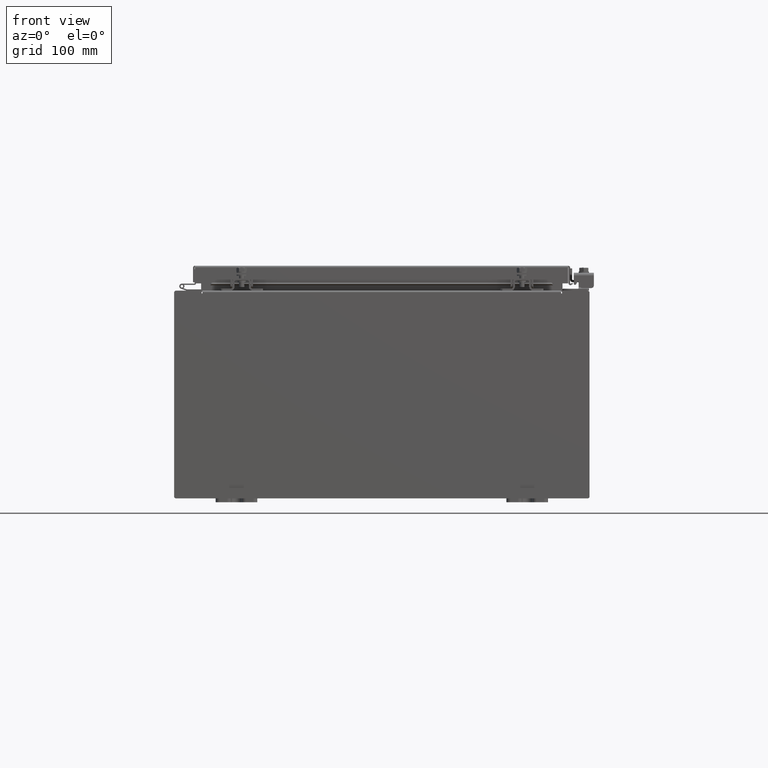
[diagram: clean part render]
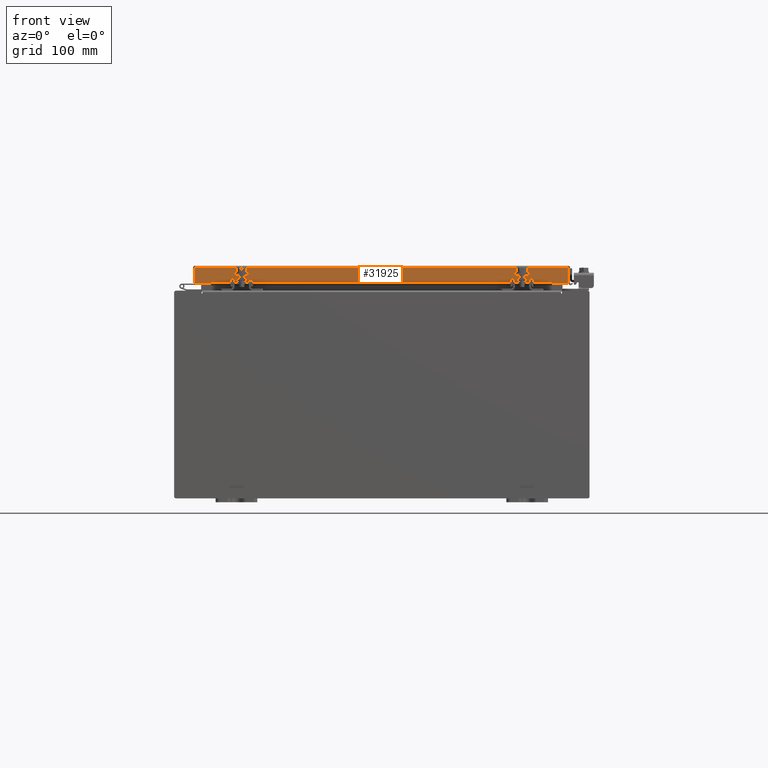
[diagram: same view with one face highlighted and labeled with its STEP entity id]
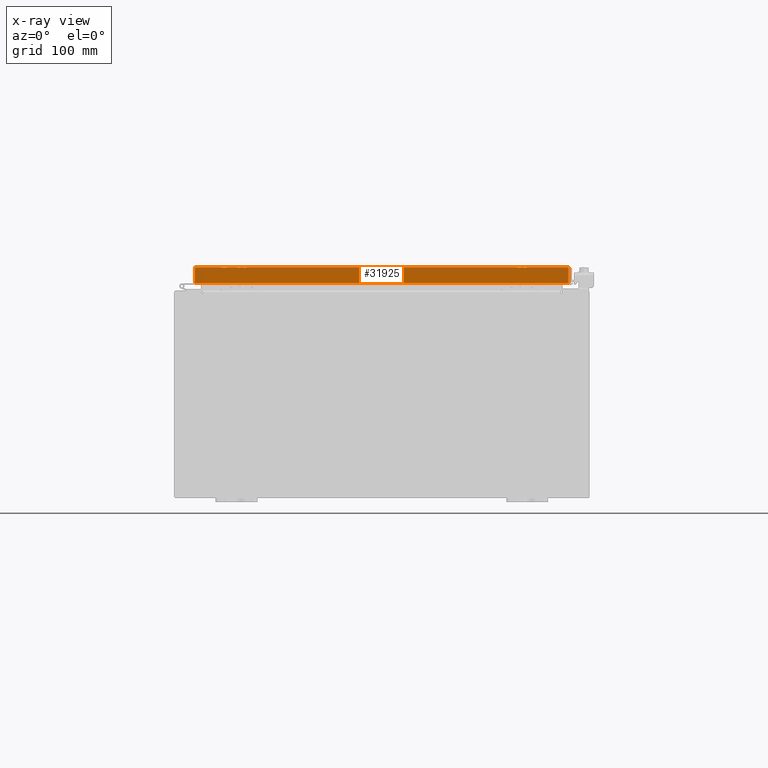
[diagram: x-ray of the same camera — body ghosted, the highlighted face saturated]
A machine part, front view. The second image highlights one B-rep face of the part: STEP entity #31925.
The next image is the same camera in x-ray: the body ghosted, the highlighted face saturated — about 0% of this face is hidden behind the body in this view.
In plain terms, the highlighted planar face has unit normal (-0, 1, -0).
Its self-contained STEP definition (entity closure, byte-faithful):
#620 = DIRECTION ( 'NONE',  ( 1.000000000000000000, 1.203722403024570700E-016, -1.203722403024570700E-016 ) ) ;
#950 = CARTESIAN_POINT ( 'NONE',  ( 8.989157864376267100, -11.09400000000000300, -0.8499999999999999800 ) ) ;
#2841 = VECTOR ( 'NONE', #19007, 39.37007874015748100 ) ;
#3011 = VERTEX_POINT ( 'NONE', #950 ) ;
#3575 = CARTESIAN_POINT ( 'NONE',  ( 9.077999999999999400, -11.09400000000000300, -0.8499999999999999800 ) ) ;
#3639 = EDGE_CURVE ( 'NONE', #5004, #18787, #28654, .T. ) ;
#4709 = CARTESIAN_POINT ( 'NONE',  ( 9.077999999999999400, -11.09400000000000300, -0.8499999999999999800 ) ) ;
#5004 = VERTEX_POINT ( 'NONE', #24847 ) ;
#5999 = FACE_OUTER_BOUND ( 'NONE', #17643, .T. ) ;
#6748 = LINE ( 'NONE', #26086, #25416 ) ;
#6906 = CARTESIAN_POINT ( 'NONE',  ( 1.336044409401428800E-015, -11.09400000000000100, 3.059669752903974500E-014 ) ) ;
#7011 = DIRECTION ( 'NONE',  ( 0.0000000000000000000, 2.818880942772360100E-015, 1.000000000000000000 ) ) ;
#8382 = ORIENTED_EDGE ( 'NONE', *, *, #12434, .T. ) ;
#8844 = CARTESIAN_POINT ( 'NONE',  ( -8.989157864376267100, -11.09400000000000100, 3.059669752903974500E-014 ) ) ;
#9258 = CARTESIAN_POINT ( 'NONE',  ( 8.239157864376267100, -11.09399999999999900, -0.8500000000000020900 ) ) ;
#9511 = LINE ( 'NONE', #8844, #15504 ) ;
#10199 = ORIENTED_EDGE ( 'NONE', *, *, #25966, .F. ) ;
#10807 = CARTESIAN_POINT ( 'NONE',  ( -8.989157864376267100, -11.09400000000000100, -0.08769999999999808500 ) ) ;
#11206 = VERTEX_POINT ( 'NONE', #10807 ) ;
#11556 = ORIENTED_EDGE ( 'NONE', *, *, #12582, .F. ) ;
#12330 = EDGE_CURVE ( 'NONE', #11206, #18646, #6748, .T. ) ;
#12434 = EDGE_CURVE ( 'NONE', #11206, #18787, #9511, .T. ) ;
#12582 = EDGE_CURVE ( 'NONE', #27094, #5004, #18289, .T. ) ;
#14206 = AXIS2_PLACEMENT_3D ( 'NONE', #6906, #22253, #7011 ) ;
#15504 = VECTOR ( 'NONE', #21538, 39.37007874015748100 ) ;
#15660 = VECTOR ( 'NONE', #27624, 39.37007874015748100 ) ;
#16319 = CARTESIAN_POINT ( 'NONE',  ( 8.989157864376267100, -11.09400000000000100, -0.08769999999999808500 ) ) ;
#16865 = CARTESIAN_POINT ( 'NONE',  ( -8.989157864376267100, -11.09400000000000700, -0.8499999999999977600 ) ) ;
#17643 = EDGE_LOOP ( 'NONE', ( #22974, #8382, #22988, #11556, #10199, #22615 ) ) ;
#18289 = LINE ( 'NONE', #9258, #31785 ) ;
#18646 = VERTEX_POINT ( 'NONE', #16319 ) ;
#18787 = VERTEX_POINT ( 'NONE', #16865 ) ;
#19007 = DIRECTION ( 'NONE',  ( -0.0000000000000000000, -2.818880942772360100E-015, -1.000000000000000000 ) ) ;
#19699 = PLANE ( 'NONE',  #14206 ) ;
#21538 = DIRECTION ( 'NONE',  ( 0.0000000000000000000, -2.818880942772360100E-015, -1.000000000000000000 ) ) ;
#21561 = CARTESIAN_POINT ( 'NONE',  ( 8.989157864376267100, -11.09400000000000100, -0.07470000000000015500 ) ) ;
#22253 = DIRECTION ( 'NONE',  ( -1.203722403024574200E-016, 1.000000000000000000, -2.818880942772360100E-015 ) ) ;
#22401 = LINE ( 'NONE', #4709, #15660 ) ;
#22615 = ORIENTED_EDGE ( 'NONE', *, *, #29663, .F. ) ;
#22974 = ORIENTED_EDGE ( 'NONE', *, *, #12330, .F. ) ;
#22988 = ORIENTED_EDGE ( 'NONE', *, *, #3639, .F. ) ;
#23922 = DIRECTION ( 'NONE',  ( -1.000000000000000000, -1.203722403024570700E-016, 1.203722403024570700E-016 ) ) ;
#24847 = CARTESIAN_POINT ( 'NONE',  ( -8.239157864376267100, -11.09399999999999900, -0.8500000000000020900 ) ) ;
#25416 = VECTOR ( 'NONE', #620, 39.37007874015748100 ) ;
#25966 = EDGE_CURVE ( 'NONE', #3011, #27094, #22401, .T. ) ;
#26086 = CARTESIAN_POINT ( 'NONE',  ( 9.077999999999999400, -11.09400000000000100, -0.08770000000000026400 ) ) ;
#27060 = DIRECTION ( 'NONE',  ( -1.000000000000000000, 0.0000000000000000000, 0.0000000000000000000 ) ) ;
#27071 = VECTOR ( 'NONE', #23922, 39.37007874015748100 ) ;
#27094 = VERTEX_POINT ( 'NONE', #32076 ) ;
#27624 = DIRECTION ( 'NONE',  ( -1.000000000000000000, -1.203722403024570700E-016, 1.203722403024570700E-016 ) ) ;
#28654 = LINE ( 'NONE', #3575, #27071 ) ;
#29663 = EDGE_CURVE ( 'NONE', #18646, #3011, #29896, .T. ) ;
#29896 = LINE ( 'NONE', #21561, #2841 ) ;
#31785 = VECTOR ( 'NONE', #27060, 39.37007874015748100 ) ;
#31925 = ADVANCED_FACE ( 'NONE', ( #5999 ), #19699, .F. ) ;
#32076 = CARTESIAN_POINT ( 'NONE',  ( 8.239157864376267100, -11.09399999999999900, -0.8500000000000020900 ) ) ;